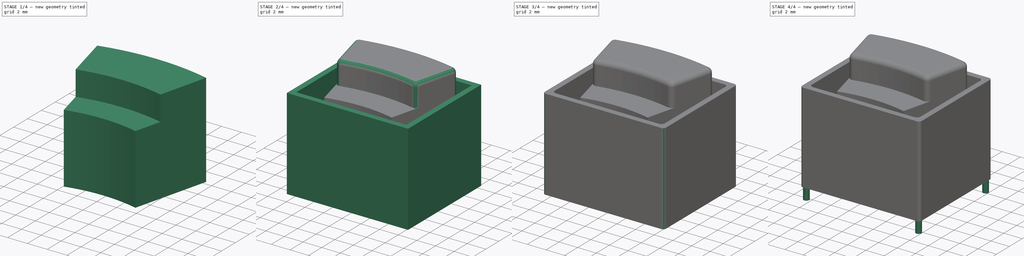
[diagram: build sequence overview — one tinted view per stage of 4, left to right]
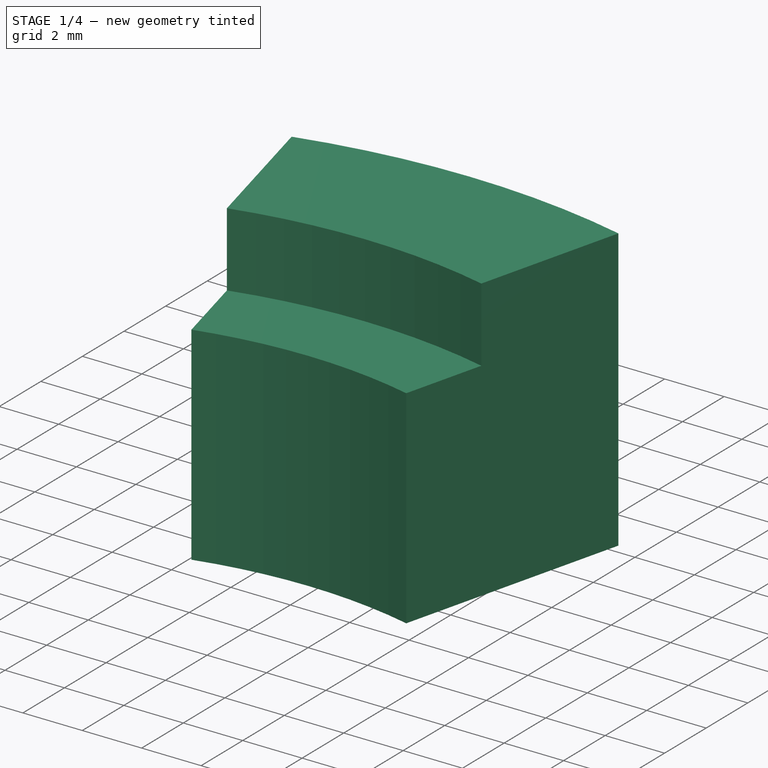
[diagram: stage 1 of 4 — iso view after this stage's code; geometry added in this stage tinted green]
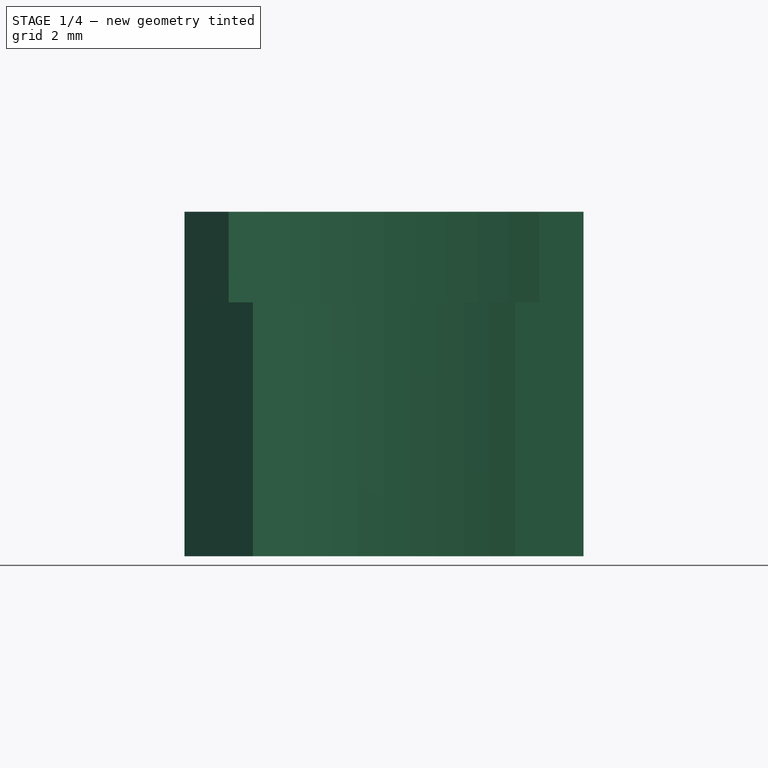
[diagram: stage 1 of 4 — front view after this stage's code; geometry added in this stage tinted green]
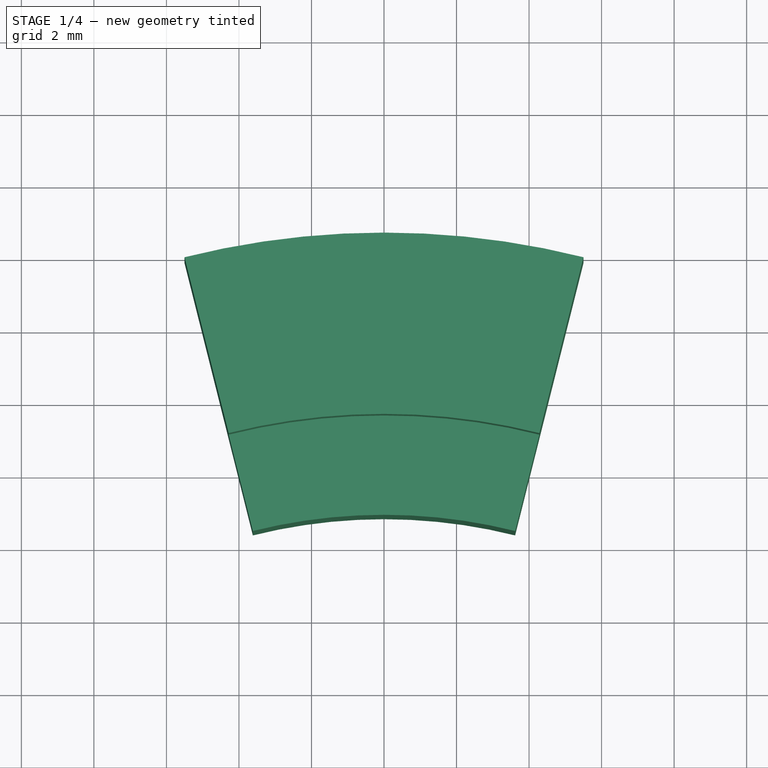
[diagram: stage 1 of 4 — top view after this stage's code; geometry added in this stage tinted green]
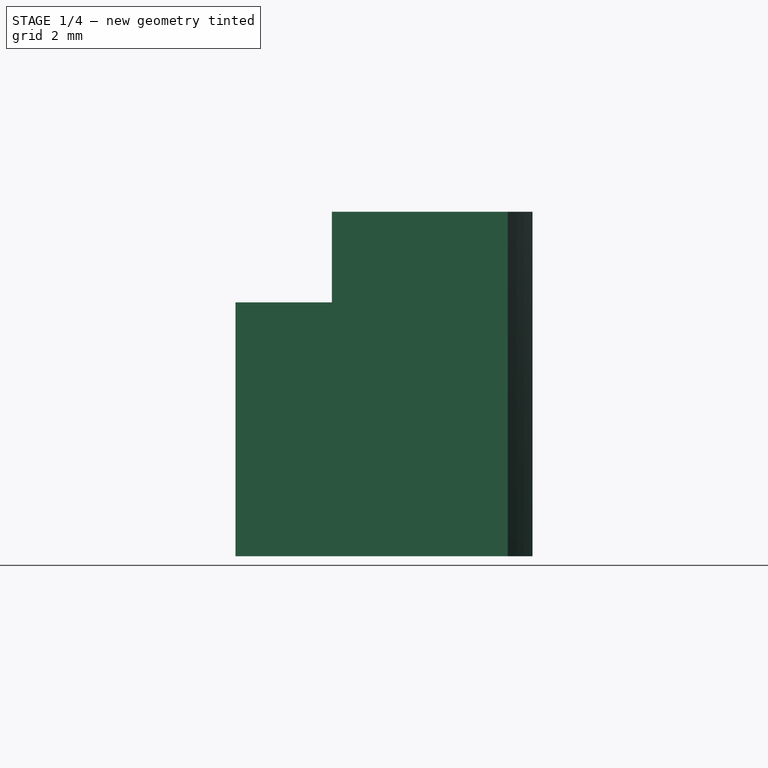
[diagram: stage 1 of 4 — right view after this stage's code; geometry added in this stage tinted green]
FCSTD DOCUMENT  (FreeCAD 0.18R16146 (Git))
Label: LED_switch_circAllTogether
License: All rights reserved
LicenseURL: http://en.wikipedia.org/wiki/All_rights_reserved
objects: Sketcher::SketchObject×7, PartDesign::Pad×4, PartDesign::Fillet×4, PartDesign::Pocket×3, Part::Feature×2, PartDesign::Plane×2, PartDesign::Body×2, PartDesign::Mirrored×1, Part::Fuse×1
note: 33 computed .brp shape members not serialized (recipe doc carries the construction recipe); baked Part::Feature solids carry a one-line shape summary decoded from their .brp

FEATURE [Part::Feature] Part__Feature  label="LED_WS2812_PLCC6_50x50mm_P16mm"
  shape: bbox 5.4 x 5 x 1.85 mm, 94 faces (baked)
FEATURE [Part::Feature] Part__Feature001  label="SW_SPST_CK_RS282G05A3"
  Placement = pos=(0,-4.5,0) rot=(0,0,1;0rad)
  shape: bbox 8 x 3.5 x 2.5 mm, 109 faces (baked)
FEATURE [PartDesign::Plane] DatumPlane  label="UnterkanteFaceplate"
  Length = 24
  MapMode = 2
  Placement = pos=(0,0,10) rot=(0,0,1;0rad)
  ResizeMode = 0
  Width = 24
FEATURE [Sketcher::SketchObject] Sketch
  MapMode = 5
  Placement = pos=(0,0,10) rot=(0,0,1;0rad)
  Support = -> [DatumPlane]
  sketch-geometry (11):
    g0: ArcOfCircle CenterX=0 CenterY=-20 CenterZ=0 NormalX=0 NormalY=0 NormalZ=1 AngleXU=0 Radius=22.6 StartAngle=1.32496 EndAngle=1.81663
    g1: LineSegment [constr] StartX=-5.5 StartY=1.92054 StartZ=0 EndX=0 EndY=-20 EndZ=0
    g2: LineSegment [constr] StartX=0 StartY=-20 StartZ=0 EndX=5.5 EndY=1.92054 EndZ=0
    g3: GeomPoint X=0 Y=2.6 Z=0
    g4: LineSegment [constr] StartX=0 StartY=0 StartZ=0 EndX=0 EndY=-20 EndZ=0
    g5: ArcOfCircle CenterX=0 CenterY=-20 CenterZ=0 NormalX=0 NormalY=0 NormalZ=1 AngleXU=0 Radius=14.86 StartAngle=1.32496 EndAngle=1.81663
    g6: LineSegment [constr] StartX=0 StartY=0 StartZ=0 EndX=5.5 EndY=1.92054 EndZ=0
    g7: LineSegment [constr] StartX=-5.5 StartY=1.92054 StartZ=0 EndX=0 EndY=0 EndZ=0
    g8: LineSegment StartX=-5.5 StartY=1.92054 StartZ=0 EndX=-3.61637 EndY=-5.58676 EndZ=0
    g9: LineSegment StartX=3.61637 StartY=-5.58676 StartZ=0 EndX=5.5 EndY=1.92054 EndZ=0
    g10: GeomPoint X=0 Y=-5.14 Z=0
  constraints (28):
    c: DistanceX(g0,g0) = 11
    c: Coincident(g1,g0)
    c: Coincident(g2,g0)
    c: Coincident(g2,g0)
    c: Coincident(g1,g0)
    c: PointOnObject(g0,g-2)
    c: PointOnObject(g3,g0)
    c: PointOnObject(g3,g-2)
    c: Equal(g1,g2)
    c: Coincident(g4,g-1)
    c: Coincident(g4,g0)
    c: DistanceY(g4,g4) = 20
    c: PointOnObject(g5,g1)
    c: PointOnObject(g5,g2)
    c: Coincident(g6,g-1)
    c: Coincident(g6,g0)
    c: Coincident(g7,g0)
    c: Coincident(g7,g-1)
    c: Equal(g7,g6)
    c: Coincident(g8,g5)
    c: Coincident(g9,g5)
    c: Coincident(g9,g0)
    c: Coincident(g8,g0)
    c: DistanceY(g-1,g3) = 2.6
    c: PointOnObject(g10,g4)
    c: PointOnObject(g10,g5)
    c: DistanceY(g10,g3) = 7.74
    c: Coincident(g5,g0)
FEATURE [PartDesign::Pad] Pad  label="Körper"
  Length = 2
  Length2 = 7.5
  Placement = pos=(0,0,10) rot=(0,0,1;0rad)
  Profile = -> Sketch
  Reversed = true
  Type = 4
FEATURE [Sketcher::SketchObject] Sketch001
  ExternalGeometry = -> [Pad]
  MapMode = 5
  Placement = pos=(0,0,2.5) rot=(1,0,0;3.14159rad)
  Support = -> [Pad]
  sketch-geometry (13):
    g0: ArcOfCircle CenterX=2.1e-15 CenterY=17.8 CenterZ=0 NormalX=0 NormalY=0 NormalZ=1 AngleXU=0 Radius=20 StartAngle=4.45979 EndAngle=4.96499
    g1: LineSegment StartX=-4.99847 StartY=-1.56531 StartZ=0 EndX=-3.30948 EndY=5.16628 EndZ=0
    g2: LineSegment StartX=3.30948 StartY=5.16628 StartZ=0 EndX=4.99847 EndY=-1.56531 EndZ=0
    g3: LineSegment [constr] StartX=-3.61637 StartY=5.58676 StartZ=0 EndX=3.61637 EndY=5.58676 EndZ=0
    g4: GeomPoint X=0 Y=-2.2 Z=0
    g5: GeomPoint X=0 Y=-2.6 Z=0
    g6: LineSegment [constr] StartX=4.99847 StartY=-1.56531 StartZ=0 EndX=5.38645 EndY=-1.46797 EndZ=0
    g7: LineSegment [constr] StartX=-4.99847 StartY=-1.56531 StartZ=0 EndX=-5.38645 EndY=-1.46797 EndZ=0
    g8: ArcOfCircle CenterX=2.1e-15 CenterY=17.8 CenterZ=0 NormalX=0 NormalY=0 NormalZ=1 AngleXU=0 Radius=13.06 StartAngle=4.45619 EndAngle=4.96859
    g9: GeomPoint X=0 Y=5.14 Z=0
    g10: GeomPoint X=0 Y=4.74 Z=0
    g11: LineSegment [constr] StartX=-3.61637 StartY=5.58676 StartZ=0 EndX=-3.30948 EndY=5.16628 EndZ=0
    g12: LineSegment [constr] StartX=3.61637 StartY=5.58676 StartZ=0 EndX=3.30948 EndY=5.16628 EndZ=0
  constraints (33):
    c: Coincident(g1,g0)
    c: Coincident(g2,g0)
    c: Parallel(g2,g-5)
    c: Parallel(g1,g-4)
    c: Coincident(g3,g-4)
    c: Coincident(g3,g-5)
    c: PointOnObject(g4,g0)
    c: PointOnObject(g4,g-2)
    c: PointOnObject(g5,g-2)
    c: DistanceY(g5,g4) = 0.4
    c: PointOnObject(g6,g-5)
    c: Perpendicular(g2,g6)
    c: Distance(g6,g6) = 0.4
    c: PointOnObject(g7,g-4)
    c: Perpendicular(g1,g7)
    c: Distance(g7,g7) = 0.4
    c: DistanceY(g4,g0) = 20
    c: Coincident(g8,g1)
    c: Coincident(g8,g2)
    c: Coincident(g8,g0)
    c: PointOnObject(g9,g-3)
    c: PointOnObject(g10,g8)
    c: PointOnObject(g9,g-2)
    c: PointOnObject(g10,g-2)
    c: DistanceY(g10,g9) = 0.4
    c: Coincident(g7,g0)
    c: Coincident(g6,g0)
    c: Coincident(g11,g3)
    c: Coincident(g11,g1)
    c: Coincident(g12,g3)
    c: Coincident(g12,g2)
    c: Equal(g12,g11)
    c: PointOnObject(g5,g-6)
FEATURE [PartDesign::Pocket] Pocket  label="Aushöhlung"
  BaseFeature = -> Pad
  Length = 6.6
  Length2 = 100
  Placement = pos=(0,0,10) rot=(0,0,1;0rad)
  Profile = -> Sketch001
  Type = 0
FEATURE [Sketcher::SketchObject] Sketch002
  ExternalGeometry = -> [Pocket]
  MapMode = 5
  Placement = pos=(0,0,12) rot=(0,0,1;0rad)
  Support = -> [Pocket]
  sketch-geometry (7):
    g0: ArcOfCircle CenterX=-6e-15 CenterY=-20 CenterZ=0 NormalX=0 NormalY=0 NormalZ=1 AngleXU=0 Radius=17.6 StartAngle=1.32496 EndAngle=1.81663
    g1: GeomPoint X=0 Y=2.6 Z=0
    g2: GeomPoint X=0 Y=-2.4 Z=0
    g3: GeomPoint X=0 Y=-5.14 Z=0
    g4: ArcOfCircle CenterX=1.7e-15 CenterY=-20 CenterZ=0 NormalX=0 NormalY=0 NormalZ=1 AngleXU=0 Radius=14.86 StartAngle=1.32496 EndAngle=1.81663
    g5: LineSegment StartX=-4.28319 StartY=-2.92914 StartZ=0 EndX=-3.61637 EndY=-5.58676 EndZ=0
    g6: LineSegment StartX=4.28319 StartY=-2.92914 StartZ=0 EndX=3.61637 EndY=-5.58676 EndZ=0
  constraints (18):
    c: PointOnObject(g0,g-3)
    c: PointOnObject(g0,g-5)
    c: DistanceY(g0,g-1) = 20
    c: PointOnObject(g1,g-2)
    c: PointOnObject(g3,g-2)
    c: Coincident(g4,g-3)
    c: Coincident(g4,g-5)
    c: PointOnObject(g1,g-4)
    c: PointOnObject(g2,g0)
    c: PointOnObject(g2,g-2)
    c: PointOnObject(g3,g-6)
    c: PointOnObject(g3,g4)
    c: Coincident(g5,g0)
    c: Coincident(g5,g4)
    c: Coincident(g6,g0)
    c: Coincident(g6,g4)
    c: DistanceY(g2,g1) = 5
    c: Equal(g6,g5)
FEATURE [PartDesign::Pocket] Pocket001
  BaseFeature = -> Pocket
  Length = 2.5
  Length2 = 100
  Placement = pos=(0,0,10) rot=(0,0,1;0rad)
  Profile = -> Sketch002
  Type = 0
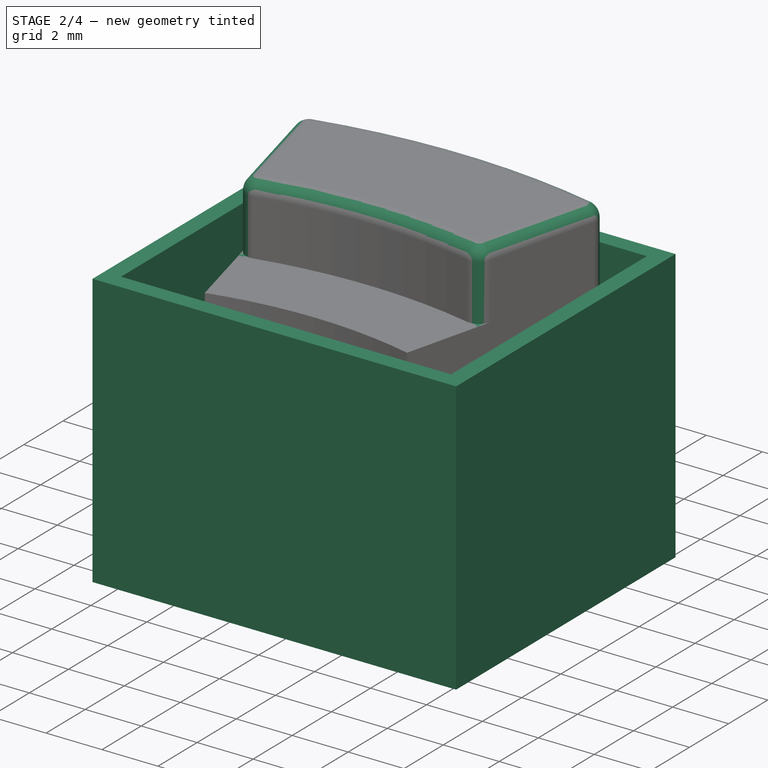
[diagram: stage 2 of 4 — iso view after this stage's code; geometry added in this stage tinted green]
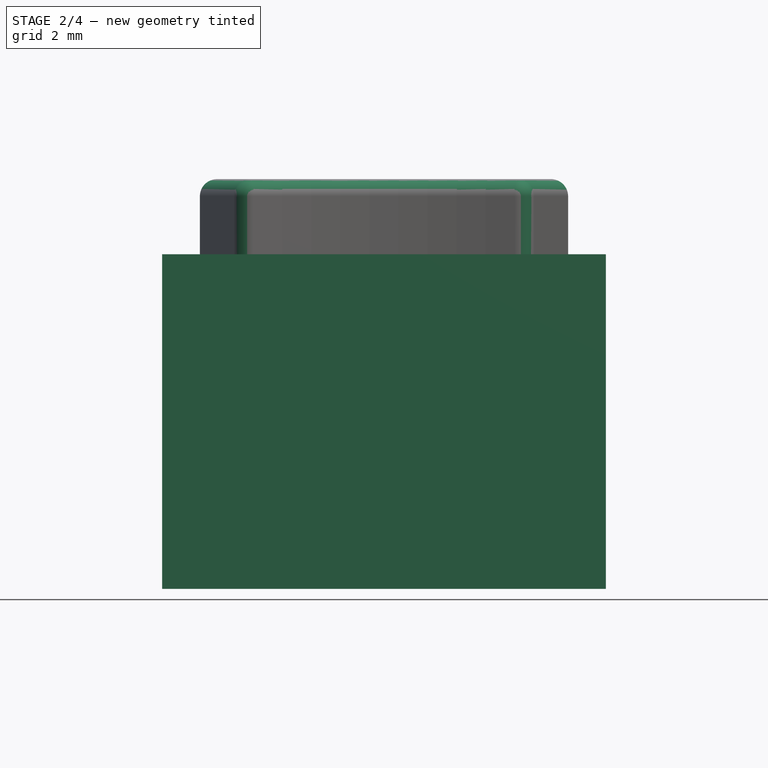
[diagram: stage 2 of 4 — front view after this stage's code; geometry added in this stage tinted green]
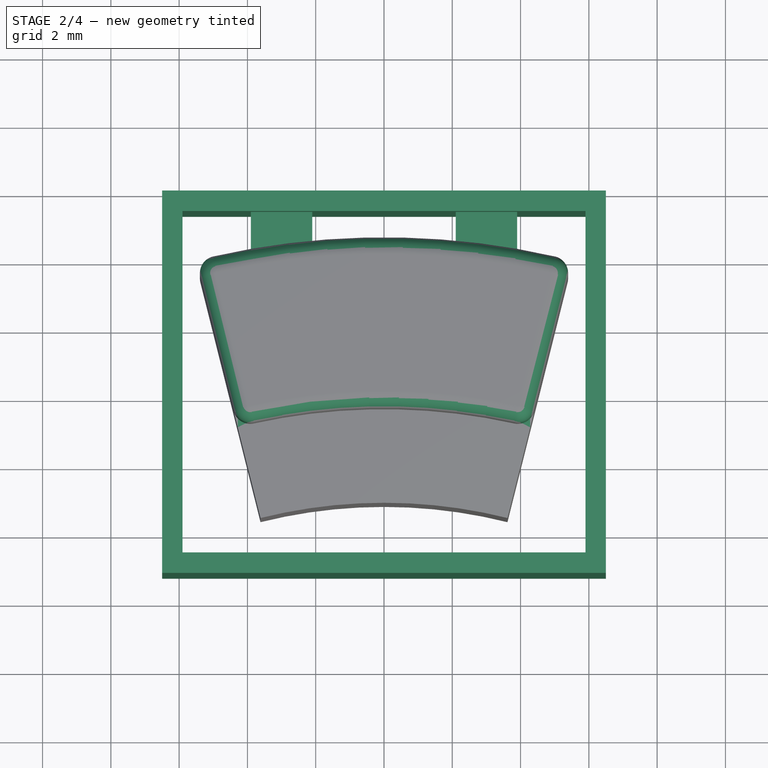
[diagram: stage 2 of 4 — top view after this stage's code; geometry added in this stage tinted green]
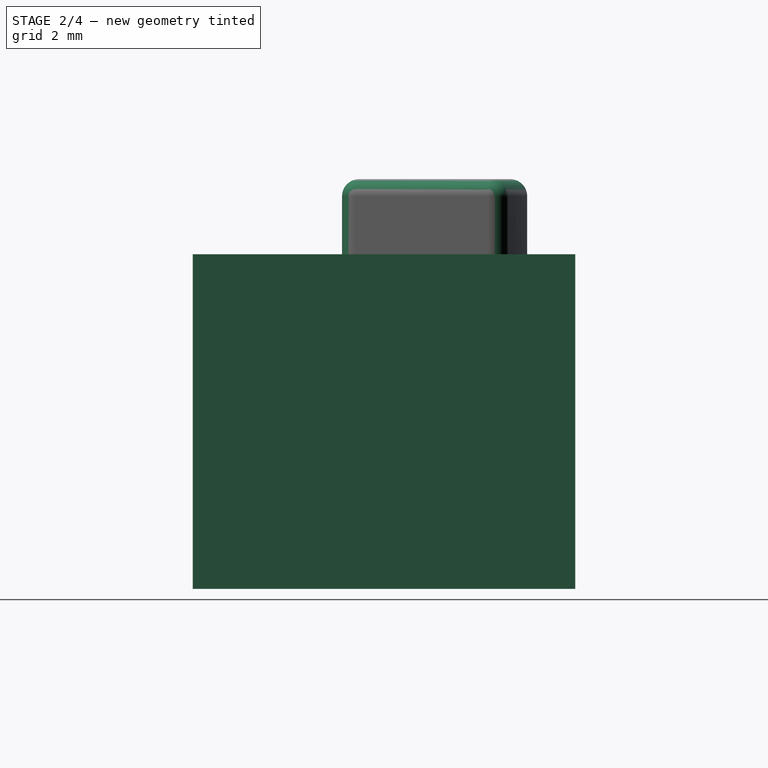
[diagram: stage 2 of 4 — right view after this stage's code; geometry added in this stage tinted green]
FEATURE [Sketcher::SketchObject] Sketch005
  MapMode = 5
  Support = -> [XY_Plane001]
  sketch-geometry (9):
    g0: LineSegment StartX=-5.9 StartY=3.4 StartZ=0 EndX=5.9 EndY=3.4 EndZ=0
    g1: LineSegment StartX=5.9 StartY=3.4 StartZ=0 EndX=5.9 EndY=-6.6 EndZ=0
    g2: LineSegment StartX=5.9 StartY=-6.6 StartZ=0 EndX=-5.9 EndY=-6.6 EndZ=0
    g3: LineSegment StartX=-5.9 StartY=-6.6 StartZ=0 EndX=-5.9 EndY=3.4 EndZ=0
    g4: GeomPoint X=0 Y=-1.6 Z=0
    g5: LineSegment StartX=-6.5 StartY=4 StartZ=0 EndX=6.5 EndY=4 EndZ=0
    g6: LineSegment StartX=6.5 StartY=4 StartZ=0 EndX=6.5 EndY=-7.2 EndZ=0
    g7: LineSegment StartX=6.5 StartY=-7.2 StartZ=0 EndX=-6.5 EndY=-7.2 EndZ=0
    g8: LineSegment StartX=-6.5 StartY=-7.2 StartZ=0 EndX=-6.5 EndY=4 EndZ=0
  constraints (24):
    c: Coincident(g0,g1)
    c: Coincident(g1,g2)
    c: Coincident(g2,g3)
    c: Coincident(g3,g0)
    c: Horizontal(g0)
    c: Horizontal(g2)
    c: Vertical(g1)
    c: Vertical(g3)
    c: DistanceX(g0,g0) = 11.8
    c: DistanceY(g1,g1) = 10
    c: PointOnObject(g4,g-2)
    c: Symmetric(g0,g1,g4)
    c: DistanceY(g4,g-1) = 1.6
    c: Coincident(g5,g6)
    c: Coincident(g6,g7)
    c: Coincident(g7,g8)
    c: Coincident(g8,g5)
    c: Horizontal(g5)
    c: Horizontal(g7)
    c: Vertical(g6)
    c: Vertical(g8)
    c: Symmetric(g5,g6,g4)
    c: DistanceY(g0,g5) = 0.6
    c: DistanceX(g0,g5) = 0.6
FEATURE [PartDesign::Pad] Pad003  label="frame001"
  Length = 9.8
  Length2 = 100
  Profile = -> Sketch005
  Type = 0
FEATURE [PartDesign::Body] Body001  label="frame"
  Group = -> [Sketch005,Pad003,Fillet005,Fillet006,Sketch006,Pocket002,Mirrored001,Fillet007,Sketch007,Pad004]
  Origin = -> Origin001
  Tip = -> Pad004
FEATURE [PartDesign::Plane] DatumPlane001
  Length = 24
  MapMode = 2
  Placement = pos=(0,0,7.95) rot=(0,0,1;0rad)
  ResizeMode = 0
  Width = 24
FEATURE [Sketcher::SketchObject] Sketch008
  ExternalGeometry = -> [Pocket001]
  MapMode = 5
  Placement = pos=(0,0,7.95) rot=(0,0,1;0rad)
  Support = -> [DatumPlane001]
  sketch-geometry (13):
    g0: LineSegment StartX=-3.9 StartY=2.26095 StartZ=0 EndX=-3.9 EndY=4 EndZ=0
    g1: LineSegment StartX=-2.1 StartY=4 StartZ=0 EndX=-2.1 EndY=2.50222 EndZ=0
    g2: ArcOfCircle [constr] CenterX=4e-16 CenterY=-20 CenterZ=0 NormalX=0 NormalY=0 NormalZ=1 AngleXU=0 Radius=22.6 StartAngle=1.32496 EndAngle=1.81663
    g3: LineSegment StartX=-3.9 StartY=4 StartZ=0 EndX=-3 EndY=4 EndZ=0
    g4: LineSegment StartX=-3 StartY=4 StartZ=0 EndX=-2.1 EndY=4 EndZ=0
    g5: LineSegment StartX=-3.9 StartY=2.26095 StartZ=0 EndX=-2.1 EndY=2.50222 EndZ=0
    g6: LineSegment StartX=2.1 StartY=2.50222 StartZ=0 EndX=2.1 EndY=4 EndZ=0
    g7: LineSegment StartX=3.9 StartY=4 StartZ=0 EndX=3.9 EndY=2.26095 EndZ=0
    g8: LineSegment StartX=3.9 StartY=2.26095 StartZ=0 EndX=2.1 EndY=2.50222 EndZ=0
    g9: LineSegment StartX=2.1 StartY=4 StartZ=0 EndX=3 EndY=4 EndZ=0
    g10: LineSegment StartX=3 StartY=4 StartZ=0 EndX=3.9 EndY=4 EndZ=0
    g11: LineSegment [constr] StartX=-3.9 StartY=2.26095 StartZ=0 EndX=0 EndY=0 EndZ=0
    g12: LineSegment [constr] StartX=0 StartY=0 StartZ=0 EndX=3.9 EndY=2.26095 EndZ=0
  constraints (37):
    c: PointOnObject(g0,g-3)
    c: Vertical(g0)
    c: PointOnObject(g1,g-3)
    c: Vertical(g1)
    c: Coincident(g2,g-3)
    c: Coincident(g2,g-3)
    c: Coincident(g2,g-3)
    c: Horizontal(g3)
    c: Coincident(g3,g4)
    c: Coincident(g4,g1)
    c: Horizontal(g4)
    c: Equal(g4,g3)
    c: Coincident(g3,g0)
    c: DistanceX(g0,g1) = 1.8
    c: DistanceY(g-1,g1) = 4
    c: Coincident(g5,g0)
    c: Coincident(g5,g1)
    c: PointOnObject(g6,g2)
    c: Vertical(g6)
    c: PointOnObject(g7,g2)
    c: Vertical(g7)
    c: Coincident(g7,g8)
    c: Coincident(g8,g6)
    c: Equal(g6,g1)
    c: Coincident(g6,g9)
    c: Horizontal(g9)
    c: Coincident(g9,g10)
    c: Coincident(g10,g7)
    c: Horizontal(g10)
    c: Equal(g9,g10)
    c: DistanceX(g3,g9) = 6
    c: Equal(g9,g3)
    c: Coincident(g11,g0)
    c: Coincident(g11,g-1)
    c: Coincident(g12,g-1)
    c: Coincident(g12,g7)
    c: Equal(g11,g12)
FEATURE [PartDesign::Pad] Pad005
  BaseFeature = -> Pocket001
  Length = 0.45
  Length2 = 0.45
  Placement = pos=(0,0,10) rot=(0,0,1;0rad)
  Profile = -> Sketch008
  Type = 4
FEATURE [PartDesign::Fillet] Fillet  label="FilletObenAußen"
  Base = -> Pad005 [Edge24,Edge3,Edge14,Edge25,Edge4,Edge2,Edge15,Edge26]
  BaseFeature = -> Pad005
  Placement = pos=(0,0,10) rot=(0,0,1;0rad)
  Radius = 0.5
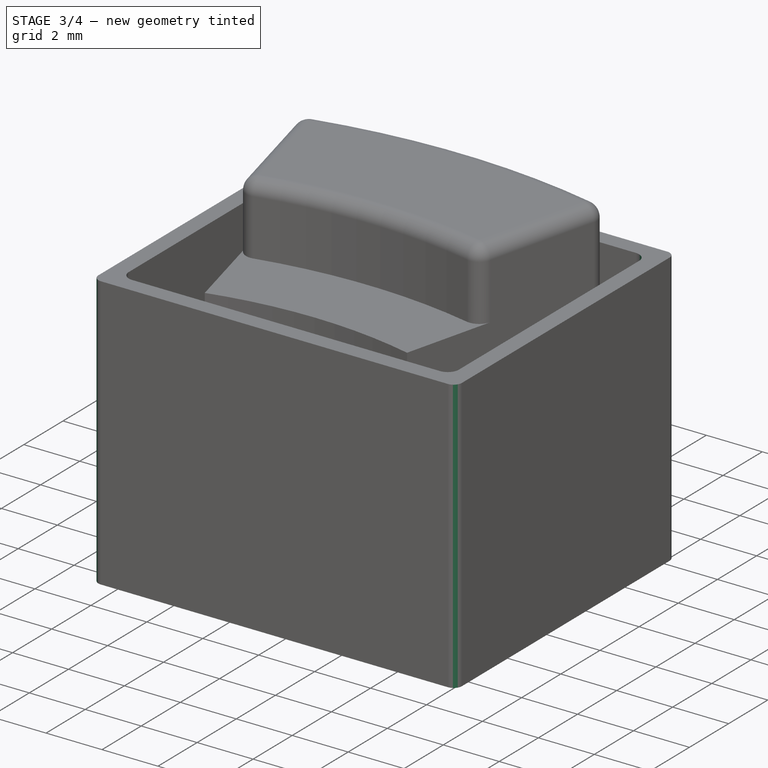
[diagram: stage 3 of 4 — iso view after this stage's code; geometry added in this stage tinted green]
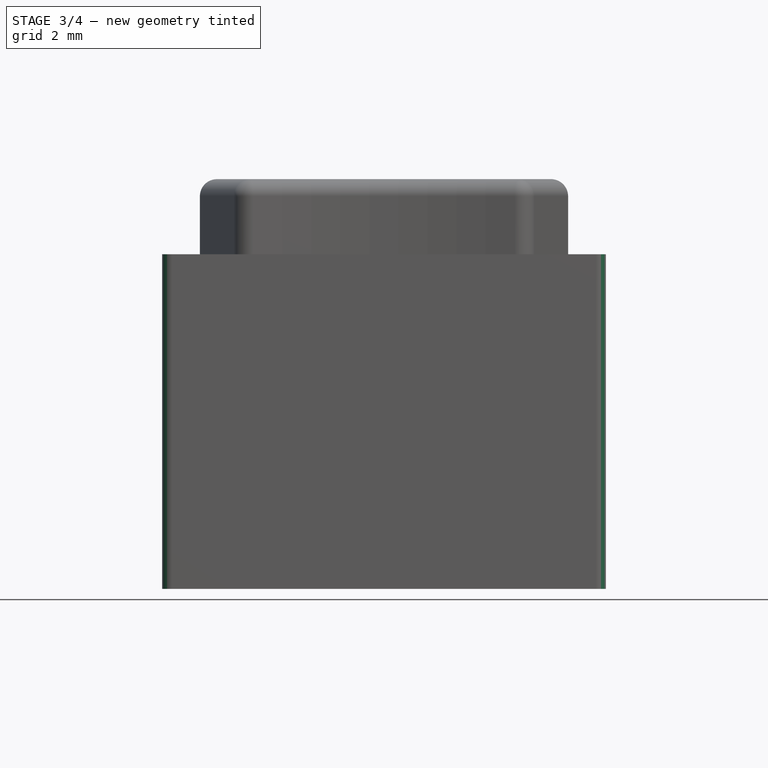
[diagram: stage 3 of 4 — front view after this stage's code; geometry added in this stage tinted green]
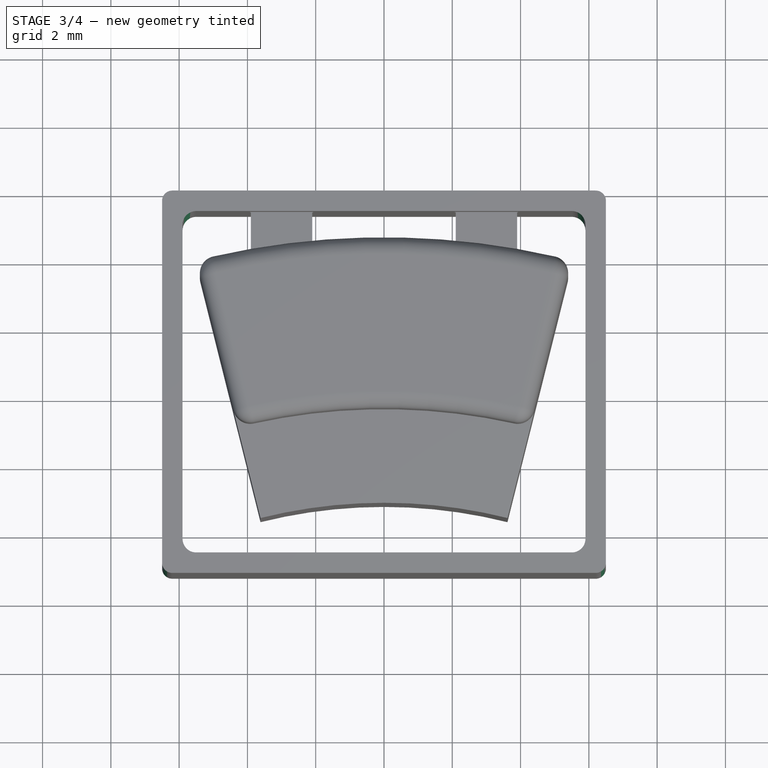
[diagram: stage 3 of 4 — top view after this stage's code; geometry added in this stage tinted green]
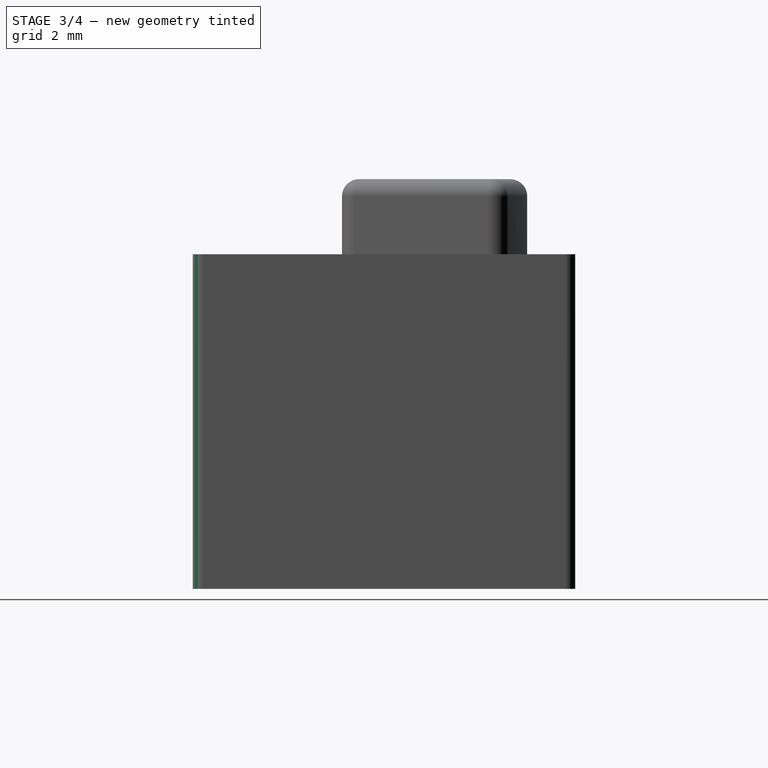
[diagram: stage 3 of 4 — right view after this stage's code; geometry added in this stage tinted green]
FEATURE [PartDesign::Fillet] Fillet005
  Base = -> Pad003 [Edge1,Edge8,Edge5,Edge2]
  BaseFeature = -> Pad003
  Radius = 0.3
FEATURE [PartDesign::Fillet] Fillet006
  Base = -> Fillet005 [Edge33,Edge34,Edge35,Edge36]
  BaseFeature = -> Fillet005
  Radius = 0.4
FEATURE [Sketcher::SketchObject] Sketch006
  MapMode = 5
  Placement = pos=(0,4,0) rot=(0,0.707107,0.707107;3.14159rad)
  Support = -> [Fillet006]
  sketch-geometry (5):
    g0: LineSegment StartX=-3.925 StartY=8.425 StartZ=0 EndX=-2.075 EndY=8.425 EndZ=0
    g1: LineSegment StartX=-2.075 StartY=8.425 StartZ=0 EndX=-2.075 EndY=7.475 EndZ=0
    g2: LineSegment StartX=-2.075 StartY=7.475 StartZ=0 EndX=-3.925 EndY=7.475 EndZ=0
    g3: LineSegment StartX=-3.925 StartY=7.475 StartZ=0 EndX=-3.925 EndY=8.425 EndZ=0
    g4: GeomPoint X=-3 Y=7.95 Z=0
  constraints (13):
    c: Coincident(g0,g1)
    c: Coincident(g1,g2)
    c: Coincident(g2,g3)
    c: Coincident(g3,g0)
    c: Horizontal(g0)
    c: Horizontal(g2)
    c: Vertical(g1)
    c: Vertical(g3)
    c: DistanceY(g1,g1) = 0.95
    c: DistanceX(g0,g0) = 1.85
    c: Symmetric(g0,g1,g4)
    c: DistanceX(g4,g-1) = 3
    c: DistanceY(g-1,g4) = 7.95
FEATURE [PartDesign::Pocket] Pocket002
  BaseFeature = -> Fillet006
  Length = 5
  Length2 = 100
  Profile = -> Sketch006
  Type = 2
FEATURE [PartDesign::Mirrored] Mirrored001
  BaseFeature = -> Pocket002
  MirrorPlane = -> Sketch006 [V_Axis]
  Originals = -> [Pocket002]
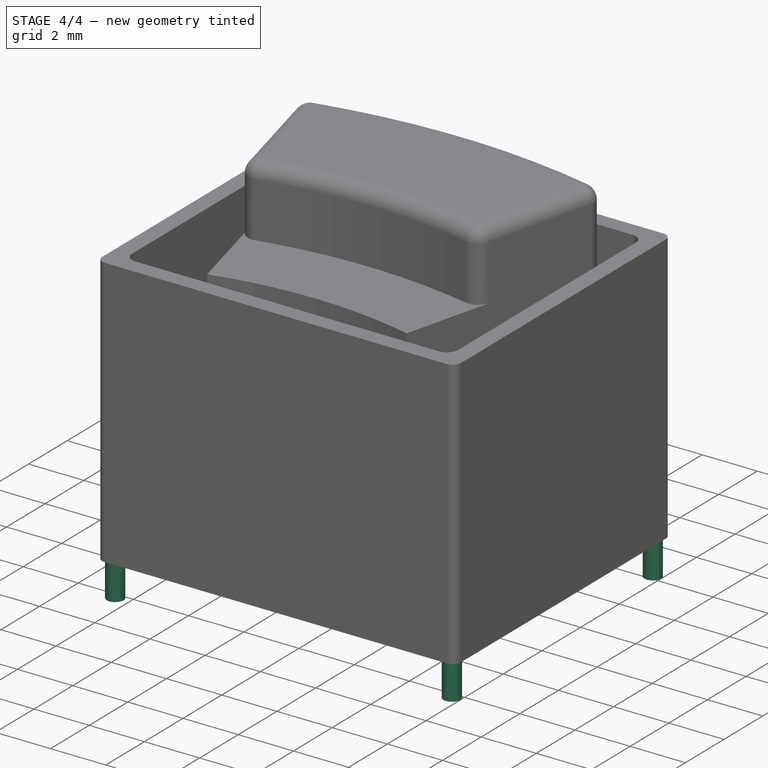
[diagram: stage 4 of 4 — iso view after this stage's code; geometry added in this stage tinted green]
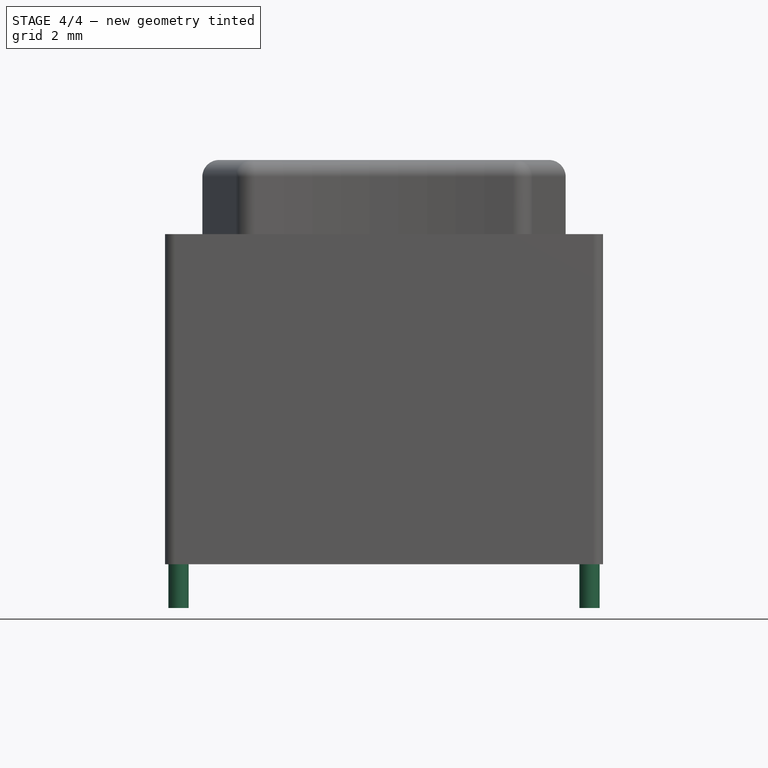
[diagram: stage 4 of 4 — front view after this stage's code; geometry added in this stage tinted green]
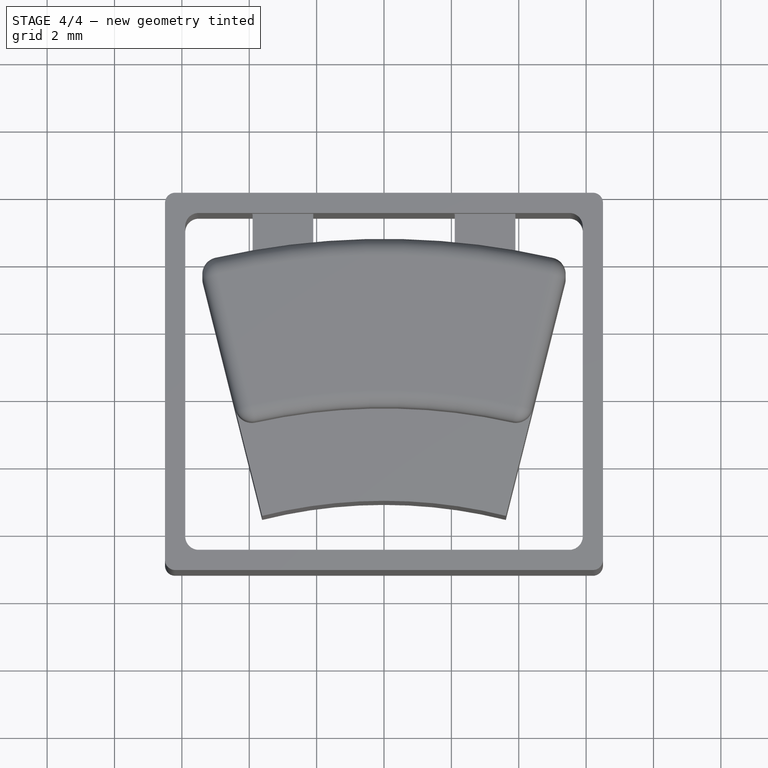
[diagram: stage 4 of 4 — top view after this stage's code; geometry added in this stage tinted green]
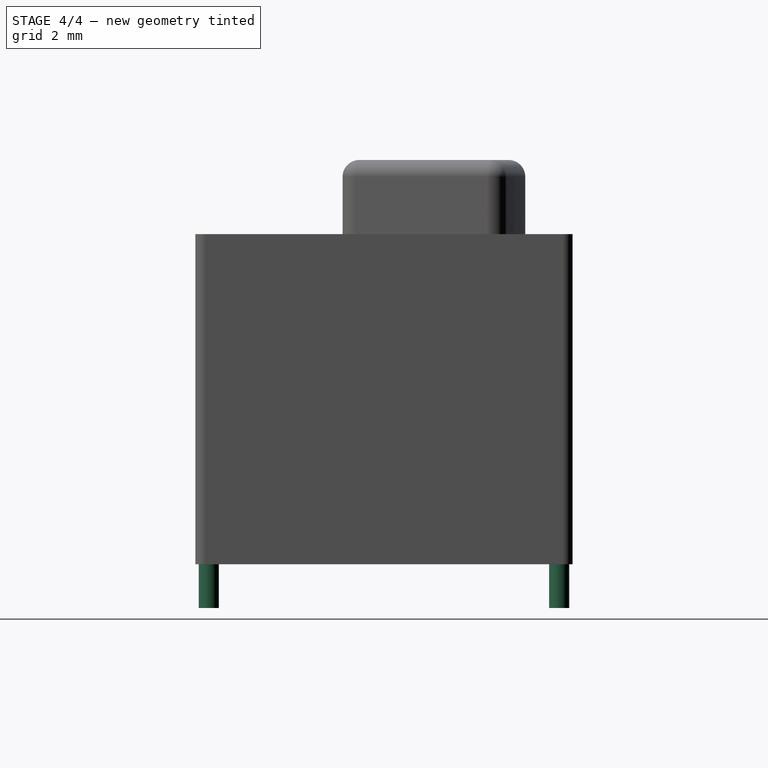
[diagram: stage 4 of 4 — right view after this stage's code; geometry added in this stage tinted green]
FEATURE [PartDesign::Fillet] Fillet007
  Base = -> Mirrored001 [Edge68,Edge67,Edge70,Edge69,Edge71,Edge72,Edge66,Edge65]
  BaseFeature = -> Mirrored001
  Radius = 0.13
FEATURE [Sketcher::SketchObject] Sketch007
  ExternalGeometry = -> [Fillet007]
  MapMode = 5
  Placement = pos=(0,0,0) rot=(1,0,0;3.14159rad)
  Support = -> [Fillet007]
  sketch-geometry (13):
    g0: LineSegment [constr] StartX=-6.41213 StartY=7.11213 StartZ=0 EndX=-5.5 EndY=6.2 EndZ=0
    g1: LineSegment [constr] StartX=6.41213 StartY=7.11213 StartZ=0 EndX=5.5 EndY=6.2 EndZ=0
    g2: LineSegment [constr] StartX=-5.5 StartY=-3 StartZ=0 EndX=-6.41213 EndY=-3.91213 EndZ=0
    g3: LineSegment [constr] StartX=5.5 StartY=-3 StartZ=0 EndX=6.41213 EndY=-3.91213 EndZ=0
    g4: Circle CenterX=-6.1 CenterY=6.8 CenterZ=0 NormalX=0 NormalY=0 NormalZ=1 AngleXU=0 Radius=0.3
    g5: Circle CenterX=6.1 CenterY=6.8 CenterZ=0 NormalX=0 NormalY=0 NormalZ=1 AngleXU=0 Radius=0.3
    g6: Circle CenterX=-6.1 CenterY=-3.6 CenterZ=0 NormalX=0 NormalY=0 NormalZ=1 AngleXU=0 Radius=0.3
    g7: Circle CenterX=6.1 CenterY=-3.6 CenterZ=0 NormalX=0 NormalY=0 NormalZ=1 AngleXU=0 Radius=0.3
    g8: LineSegment [constr] StartX=6.1 StartY=6.8 StartZ=0 EndX=6.2 EndY=6.9 EndZ=0
    g9: LineSegment [constr] StartX=-6.1 StartY=7.2 StartZ=0 EndX=-6.1 EndY=6.8 EndZ=0
    g10: LineSegment [constr] StartX=6.1 StartY=-3.6 StartZ=0 EndX=6.1 EndY=-4 EndZ=0
    g11: LineSegment [constr] StartX=-6.1 StartY=-3.6 StartZ=0 EndX=-6.1 EndY=-4 EndZ=0
    g12: LineSegment [constr] StartX=6.1 StartY=6.8 StartZ=0 EndX=6.1 EndY=7.2 EndZ=0
  constraints (38):
    c: PointOnObject(g0,g-3)
    c: Coincident(g0,g-4)
    c: PointOnObject(g-3,g0)
    c: PointOnObject(g-6,g1)
    c: Coincident(g-5,g1)
    c: Coincident(g3,g-7)
    c: Coincident(g2,g-9)
    c: PointOnObject(g2,g-10)
    c: PointOnObject(g3,g-8)
    c: PointOnObject(g1,g-6)
    c: PointOnObject(g-8,g3)
    c: PointOnObject(g-10,g2)
    c: PointOnObject(g4,g0)
    c: Diameter(g4) = 0.6
    c: PointOnObject(g5,g1)
    c: PointOnObject(g6,g2)
    c: PointOnObject(g7,g3)
    c: Equal(g7,g6)
    c: Equal(g4,g7)
    c: Equal(g5,g4)
    c: Coincident(g8,g5)
    c: Coincident(g8,g-6)
    c: DistanceY(g-8,g7) = 0.4
    c: PointOnObject(g9,g-12)
    c: Coincident(g9,g4)
    c: Perpendicular(g9,g-12)
    c: Coincident(g10,g7)
    c: PointOnObject(g10,g-11)
    c: Vertical(g10)
    c: Equal(g10,g9)
    c: Coincident(g11,g6)
    c: PointOnObject(g11,g-11)
    c: Vertical(g11)
    c: Equal(g11,g10)
    c: Coincident(g12,g5)
    c: PointOnObject(g12,g-12)
    c: Perpendicular(g-12,g12)
    c: Equal(g12,g10)
FEATURE [PartDesign::Pad] Pad004
  BaseFeature = -> Fillet007
  Length = 1.3
  Length2 = 100
  Profile = -> Sketch007
  Type = 0
FEATURE [PartDesign::Body] Body  label="Stößel"
  Group = -> [DatumPlane,Sketch,Pad,Sketch001,Pocket,Sketch002,Pocket001,DatumPlane001,Sketch008,Pad005,Fillet]
  Origin = -> Origin
  Tip = -> Fillet
FEATURE [Part::Fuse] Fusion
  Base = -> Body
  Tool = -> Body001
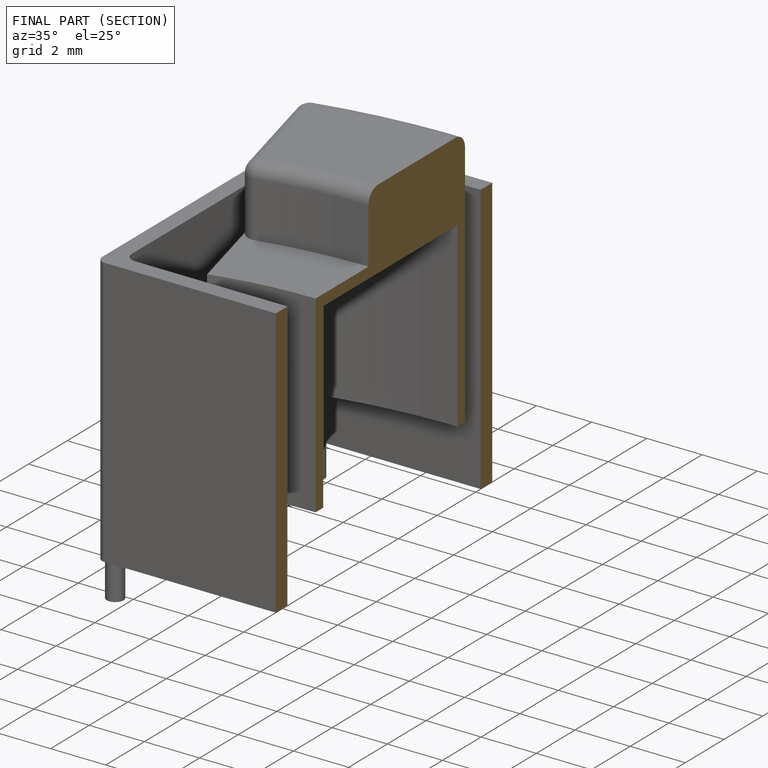
[diagram: finished part — half-section view (interior)]
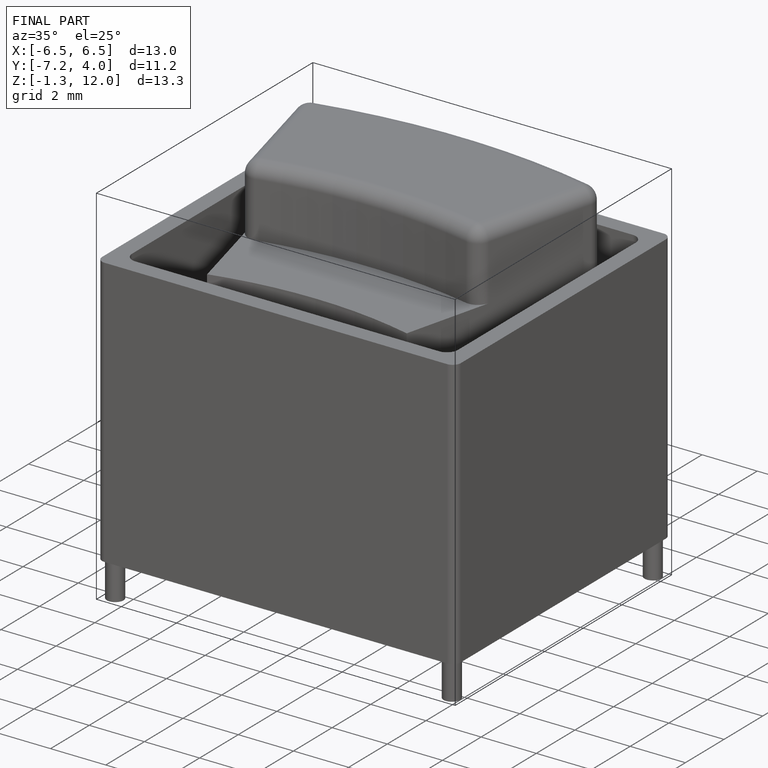
[diagram: finished part — iso view with bounding-box wireframe]
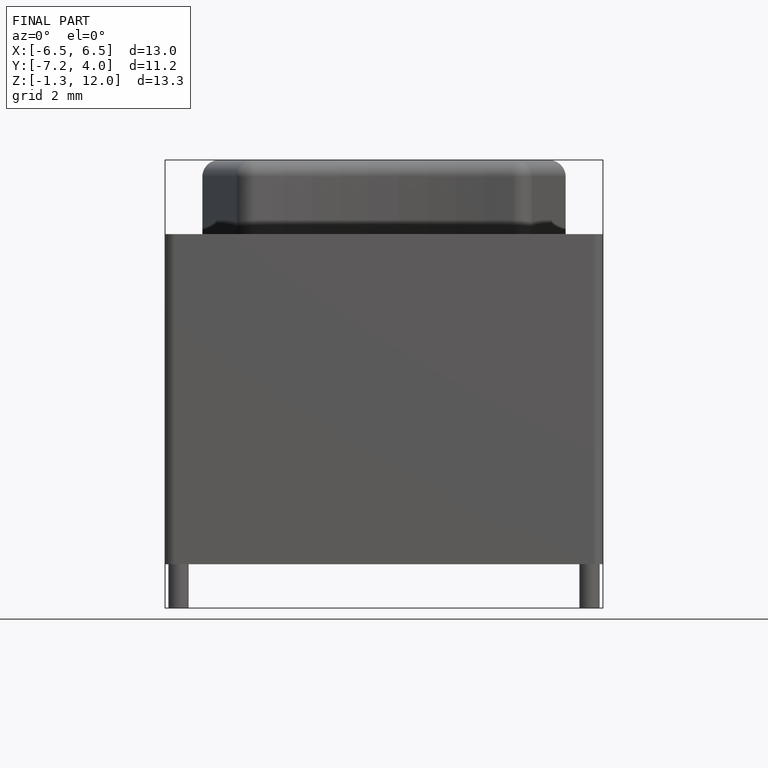
[diagram: finished part — front view with bounding-box wireframe]
